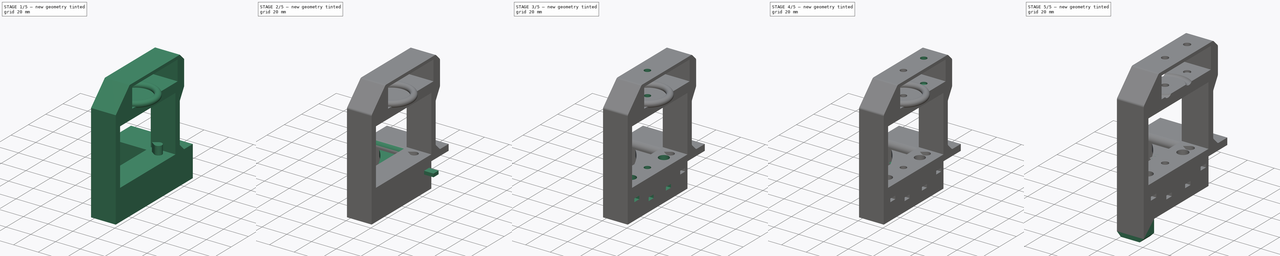
[diagram: build sequence overview — one tinted view per stage of 5, left to right]
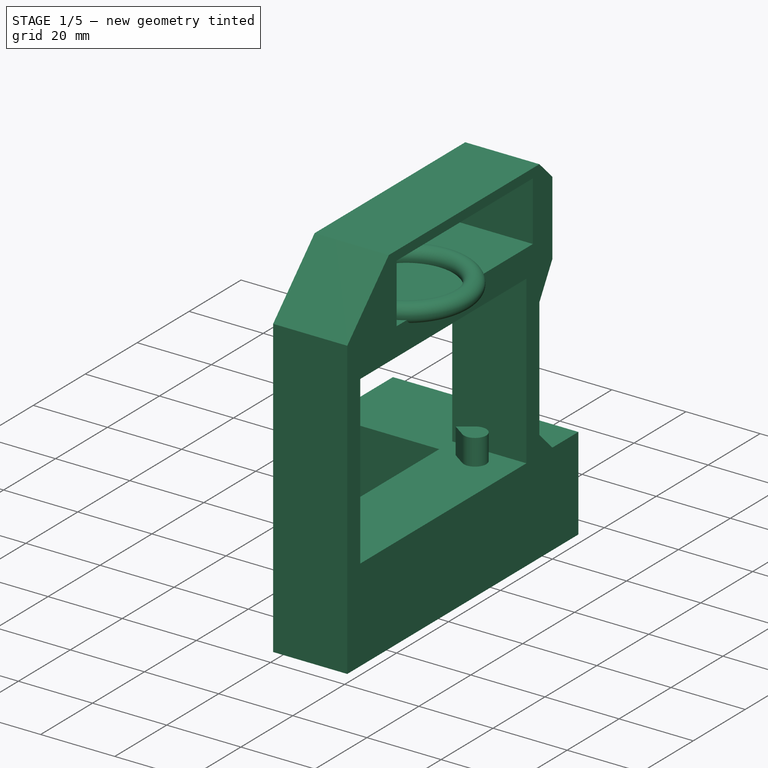
[diagram: stage 1 of 5 — iso view after this stage's code; geometry added in this stage tinted green]
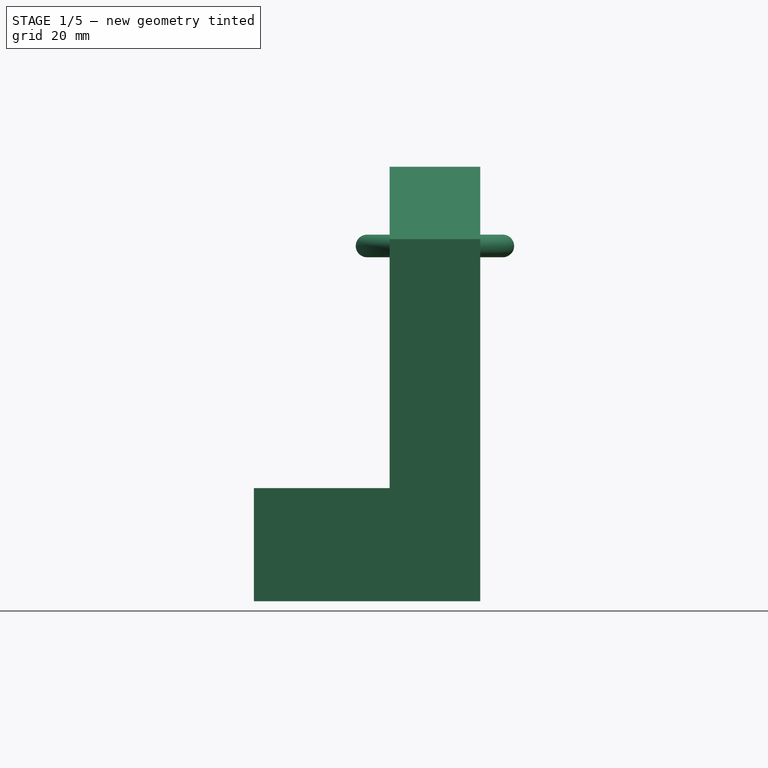
[diagram: stage 1 of 5 — front view after this stage's code; geometry added in this stage tinted green]
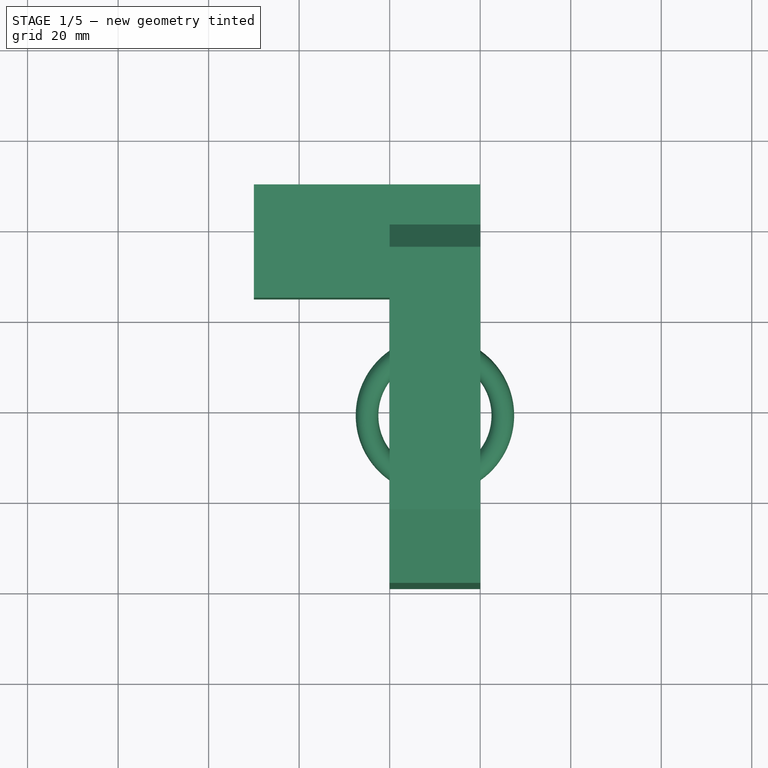
[diagram: stage 1 of 5 — top view after this stage's code; geometry added in this stage tinted green]
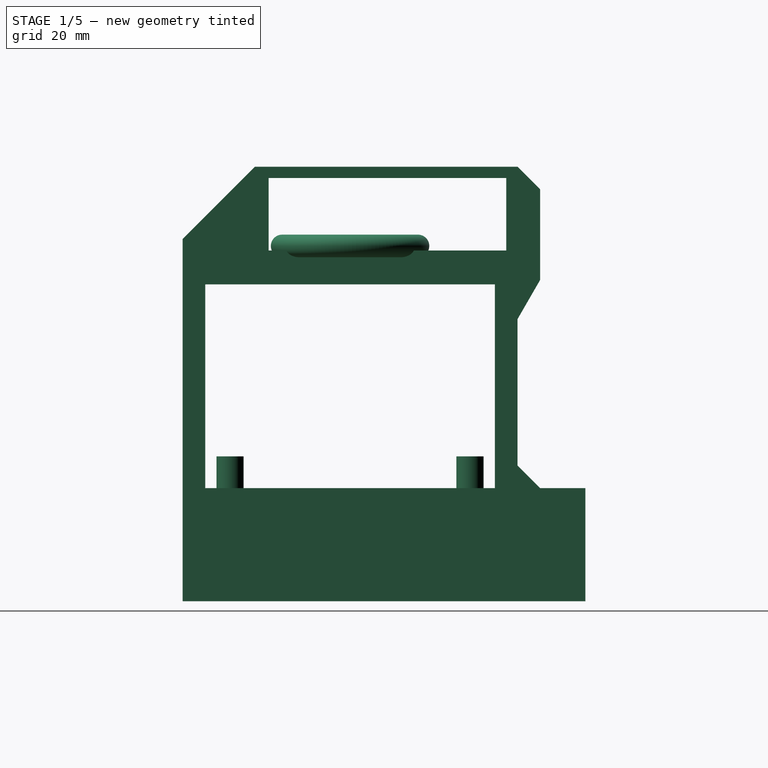
[diagram: stage 1 of 5 — right view after this stage's code; geometry added in this stage tinted green]
FCSTD DOCUMENT  (FreeCAD 0.16R6698 (Git))
Label: MainStructure
License: All rights reserved
LicenseURL: http://en.wikipedia.org/wiki/All_rights_reserved
objects: Part::FeaturePython×16, Sketcher::SketchObject×15, Part::Cut×13, PartDesign::Pad×8, Part::Feature×8, Part::Cylinder×3, Part::Chamfer×3, PartDesign::Pocket×3, Part::Extrusion×3, App::DocumentObjectGroup×3, Part::Fillet×2, Part::MultiCommon×2, Spreadsheet::Sheet×1, Part::MultiFuse×1, PartDesign::Draft×1, Part::Revolution×1
note: 90 computed .brp shape members not serialized (recipe doc carries the construction recipe); baked Part::Feature solids carry a one-line shape summary decoded from their .brp

FEATURE [Spreadsheet::Sheet] Spreadsheet  label="Parameters"
  cells = A1=Bolt Clearance (Radius); B1=0; A2=Smooth Rod Clearance (Radius); B2=0; A3=Bearing Clearance (Radius); B3=0; A4=Threaded Rod Clearance (Radius); B4=0; A5=GearsClearance; B5=0
FEATURE [Sketcher::SketchObject] Sketch  label="Base"
  Placement = pos=(0,0,0) rot=(0.57735,0.57735,0.57735;2.0944rad)
  sketch-geometry (6):
    g0: LineSegment StartX=0 StartY=86 StartZ=0 EndX=-79 EndY=86 EndZ=0
    g1: LineSegment StartX=-79 StartY=86 StartZ=0 EndX=-79 EndY=-10 EndZ=0
    g2: LineSegment StartX=-79 StartY=-10 StartZ=0 EndX=-5 EndY=-10 EndZ=0
    g3: LineSegment StartX=-5 StartY=-10 StartZ=0 EndX=-5 EndY=52.3397 EndZ=0
    g4: LineSegment StartX=0 StartY=86 StartZ=0 EndX=0 EndY=61 EndZ=0
    g5: LineSegment StartX=0 StartY=61 StartZ=0 EndX=-5 EndY=52.3397 EndZ=0
  constraints (18):
    c: Coincident(g0,g1)
    c: Coincident(g1,g2)
    c: Coincident(g2,g3)
    c: Horizontal(g0)
    c: Horizontal(g2)
    c: Vertical(g1)
    c: Vertical(g3)
    c: DistanceY(g0) = 86
    c: DistanceY(g1,g1) = 96
    c: Coincident(g4,g5)
    c: Coincident(g3,g5)
    c: Coincident(g4,g0)
    c: DistanceX(g2,g2) = 74
    c: Vertical(g4)
    c: DistanceX(g0) = -79
    c: PointOnObject(g0,g-2)
    c: DistanceY(g4,g4) = 25
    c: Angle(g5) = -2.0944
FEATURE [PartDesign::Pad] Pad  label="Base001"
  Length = 20
  Length2 = 100
  Placement = pos=(0,0,0) rot=(0.57735,0.57735,0.57735;2.0944rad)
  Reversed = true
  Sketch = -> Sketch
  Type = 0
FEATURE [Part::Chamfer] Chamfer  label="NiceChamfer"
  Base = -> Pad
  Edges = 2 edges: [Edge1 r=5,Edge2 r=16]
FEATURE [Sketcher::SketchObject] Sketch020  label="AxisCavity"
  Placement = pos=(0,0,0) rot=(0.57735,0.57735,0.57735;2.0944rad)
  Support = -> Chamfer [Face2]
  sketch-geometry (4):
    g0: LineSegment StartX=-10 StartY=60 StartZ=0 EndX=-74 EndY=60 EndZ=0
    g1: LineSegment StartX=-74 StartY=60 StartZ=0 EndX=-74 EndY=15 EndZ=0
    g2: LineSegment StartX=-74 StartY=15 StartZ=0 EndX=-10 EndY=15 EndZ=0
    g3: LineSegment StartX=-10 StartY=15 StartZ=0 EndX=-10 EndY=60 EndZ=0
  constraints (12):
    c: Coincident(g0,g1)
    c: Coincident(g1,g2)
    c: Coincident(g2,g3)
    c: Coincident(g3,g0)
    c: Horizontal(g0)
    c: Horizontal(g2)
    c: Vertical(g1)
    c: Vertical(g3)
    c: DistanceX(g0) = -10
    c: DistanceY(g0) = 60
    c: DistanceX(g0,g0) = 64
    c: DistanceY(g1,g1) = 45
FEATURE [PartDesign::Pocket] Pocket  label="AxisCavity001"
  Length = 5
  Sketch = -> Sketch020
  Type = 1
FEATURE [Sketcher::SketchObject] Sketch021  label="GearsCavity"
  Placement = pos=(0,0,0) rot=(0.57735,0.57735,0.57735;2.0944rad)
  Support = -> Pocket [Face2]
  expr: Constraints[9] = 16 + Parameters.B5
  sketch-geometry (4):
    g0: LineSegment StartX=-60 StartY=83.5 StartZ=0 EndX=-7.5 EndY=83.5 EndZ=0
    g1: LineSegment StartX=-7.5 StartY=83.5 StartZ=0 EndX=-7.5 EndY=67.5 EndZ=0
    g2: LineSegment StartX=-7.5 StartY=67.5 StartZ=0 EndX=-60 EndY=67.5 EndZ=0
    g3: LineSegment StartX=-60 StartY=67.5 StartZ=0 EndX=-60 EndY=83.5 EndZ=0
  constraints (12):
    c: Coincident(g0,g1)
    c: Coincident(g1,g2)
    c: Coincident(g2,g3)
    c: Coincident(g3,g0)
    c: Horizontal(g0)
    c: Horizontal(g2)
    c: Vertical(g1)
    c: Vertical(g3)
    c: DistanceX(g0) = -7.5
    c: DistanceY(g1,g1) = 16
    c: DistanceY(g0) = 83.5
    c: DistanceX(g0,g0) = 52.5
FEATURE [PartDesign::Pocket] Pocket001  label="GearsCavity001"
  Length = 5
  Sketch = -> Sketch021
  Type = 1
FEATURE [Sketcher::SketchObject] Sketch022  label="ProfileHolder"
  Placement = pos=(0,0,0) rot=(0.57735,0.57735,0.57735;2.0944rad)
  Support = -> Pocket001 [Face2]
  sketch-geometry (4):
    g0: LineSegment StartX=-15 StartY=15 StartZ=0 EndX=10 EndY=15 EndZ=0
    g1: LineSegment StartX=10 StartY=15 StartZ=0 EndX=10 EndY=-10 EndZ=0
    g2: LineSegment StartX=10 StartY=-10 StartZ=0 EndX=-15 EndY=-10 EndZ=0
    g3: LineSegment StartX=-15 StartY=-10 StartZ=0 EndX=-15 EndY=15 EndZ=0
  constraints (12):
    c: Coincident(g0,g1)
    c: Coincident(g2,g3)
    c: Coincident(g3,g0)
    c: Vertical(g3)
    c: Vertical(g1)
    c: Horizontal(g0)
    c: Horizontal(g2)
    c: DistanceY(g0) = 15
    c: DistanceX(g0) = -15
    c: Coincident(g1,g2)
    c: DistanceX(g2,g2) = 25
    c: Equal(g1,g2)
FEATURE [PartDesign::Pad] Pad019  label="ProfileHolder001"
  Length = 50
  Length2 = 100
  Reversed = true
  Sketch = -> Sketch022
  Type = 0
FEATURE [Part::Chamfer] Chamfer017  label="NiceChamfer001"
  Base = -> Pad019
  Edges = 1 edges r=5: [Edge37]
FEATURE [Sketcher::SketchObject] Sketch026  label="M3TearBoltHead"
  sketch-geometry (4):
    g0: ArcOfCircle CenterX=0 CenterY=0 CenterZ=0 NormalX=0 NormalY=0 NormalZ=1 Radius=3 StartAngle=2.53073 EndAngle=6.89405
    g1: LineSegment StartX=-2.45746 StartY=1.72072 StartZ=0 EndX=0 EndY=5.23034 EndZ=0
    g2: LineSegment StartX=0 StartY=5.23034 StartZ=0 EndX=2.45746 EndY=1.72072 EndZ=0
    g3: LineSegment [constr] StartX=0 StartY=5.23034 StartZ=0 EndX=0 EndY=0 EndZ=0
  constraints (11):
    c: Coincident(g0,g-1)
    c: Coincident(g1,g2)
    c: Coincident(g2,g0)
    c: Coincident(g1,g0)
    c: Tangent(g0,g1)
    c: Tangent(g2,g0)
    c: Coincident(g3,g1)
    c: Coincident(g3,g-1)
    c: Vertical(g3)
    c: Angle(g1,g2) = 1.22173
    c: Radius(g0) = 3
FEATURE [PartDesign::Pad] Pad020  label="M3TearBoltHead001"
  Length = 10
  Length2 = 100
  Reversed = true
  Sketch = -> Sketch026
  Type = 0
FEATURE [Sketcher::SketchObject] Sketch027  label="M3TearBoltThread"
  Support = -> Pad020 [Face4]
  expr: Constraints[10] = 1.5 + Parameters.B1
  sketch-geometry (4):
    g0: ArcOfCircle CenterX=0 CenterY=0 CenterZ=0 NormalX=0 NormalY=0 NormalZ=1 Radius=1.5 StartAngle=2.53074 EndAngle=6.89404
    g1: LineSegment StartX=-1.22874 StartY=0.860352 StartZ=0 EndX=0 EndY=2.61517 EndZ=0
    g2: LineSegment StartX=0 StartY=2.61517 StartZ=0 EndX=1.22874 EndY=0.860352 EndZ=0
    g3: LineSegment [constr] StartX=0 StartY=2.61517 StartZ=0 EndX=0 EndY=0 EndZ=0
  constraints (11):
    c: Coincident(g0,g-1)
    c: Coincident(g1,g2)
    c: Coincident(g2,g0)
    c: Coincident(g1,g0)
    c: Tangent(g0,g1)
    c: Tangent(g2,g0)
    c: Coincident(g3,g1)
    c: Coincident(g3,g-1)
    c: Vertical(g3)
    c: Angle(g1,g2) = 1.22173
    c: Radius(g0) = 1.5
FEATURE [PartDesign::Pad] Pad021  label="M3TearBolt"
  Length = 20
  Length2 = 100
  Sketch = -> Sketch027
  Type = 0
FEATURE [Part::FeaturePython] Clone088  label="Clone of M3TearBolt"  # Draft clone (typed FeaturePython)
  Objects = -> [Pad021]
  Placement = pos=(-10,-15.5,12) rot=(-0.707107,0.707107,0;3.14159rad)
  Scale = (1,1,1)
FEATURE [Part::FeaturePython] Array003  label="UpperBolts"  # Draft array (typed FeaturePython)
  Angle = 360
  ArrayType = 0
  Axis = (0,0,1)
  Base = -> Clone088
  Center = (0,0,0)
  Fuse = false
  IntervalAxis = (0,0,0)
  IntervalX = (1,0,0)
  IntervalY = (0,-53,0)
  IntervalZ = (0,0,0)
  NumberPolar = 1
  NumberX = 1
  NumberY = 2
  NumberZ = 1
FEATURE [Part::Feature] Clone096001  label="BigGear"
  Placement = pos=(-10,-42,68) rot=(0,0,1;0rad)
  shape: bbox 33.05 x 33.05 x 15.4 mm, 417 faces, 2 solids (baked)
FEATURE [Sketcher::SketchObject] Sketch031  label="AntiCollitionCut"
  Placement = pos=(0,0,0) rot=(0.57735,0.57735,0.57735;2.0944rad)
  sketch-geometry (1):
    g0: Circle CenterX=15 CenterY=68.5 CenterZ=0 NormalX=0 NormalY=0 NormalZ=1 Radius=2.5
  constraints (3):
    c: DistanceY(g0) = 68.5
    c: DistanceX(g0) = 15
    c: Radius(g0) = 2.5
FEATURE [Part::Revolution] Revolve  label="AntiCollitionCut001"
  Angle = 360
  Axis = (0,0,1)
  Base = (0,0,1)
  Placement = pos=(-10,-42,0) rot=(0,0,1;0rad)
  Solid = true
  Source = -> Sketch031
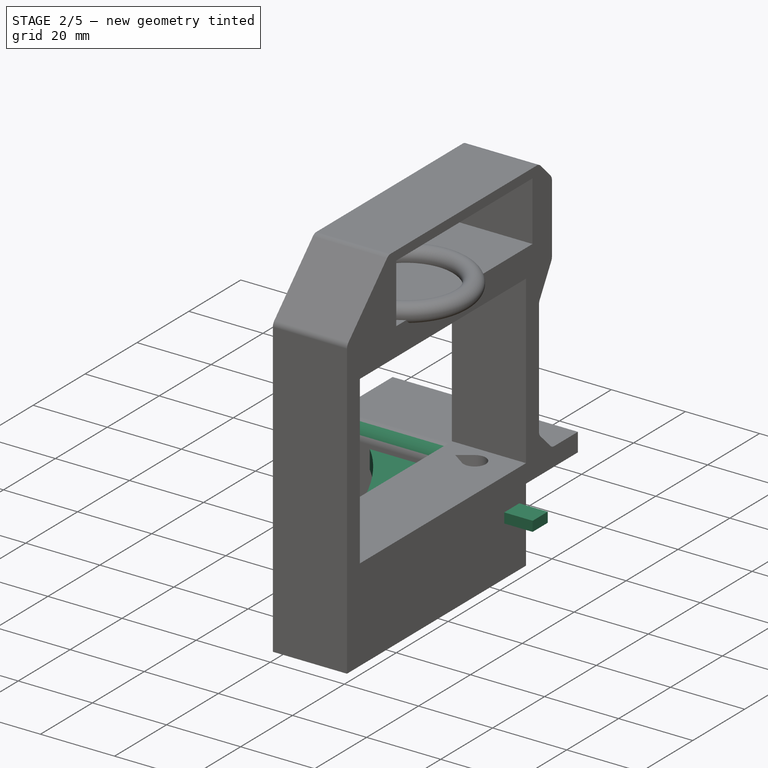
[diagram: stage 2 of 5 — iso view after this stage's code; geometry added in this stage tinted green]
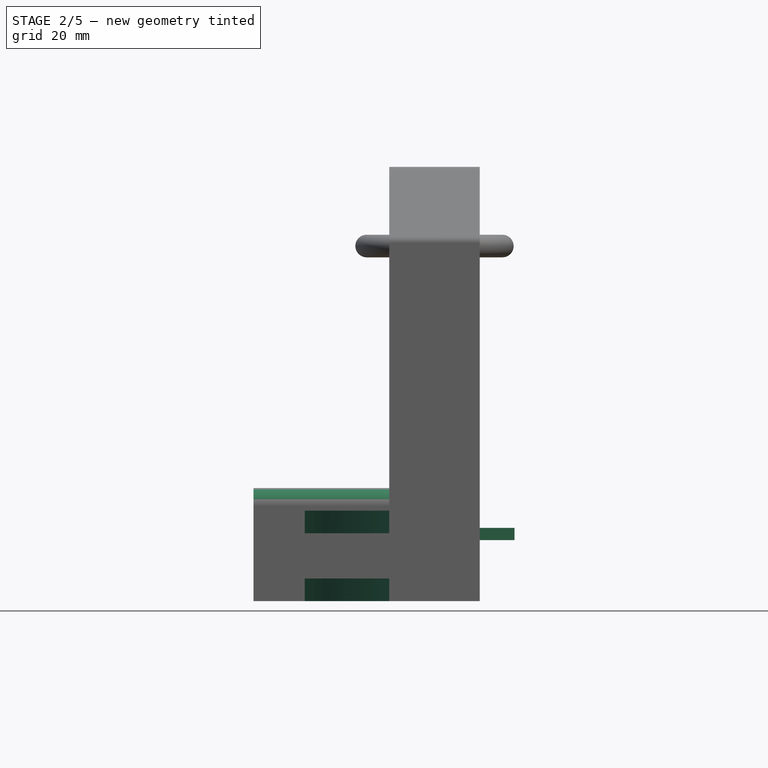
[diagram: stage 2 of 5 — front view after this stage's code; geometry added in this stage tinted green]
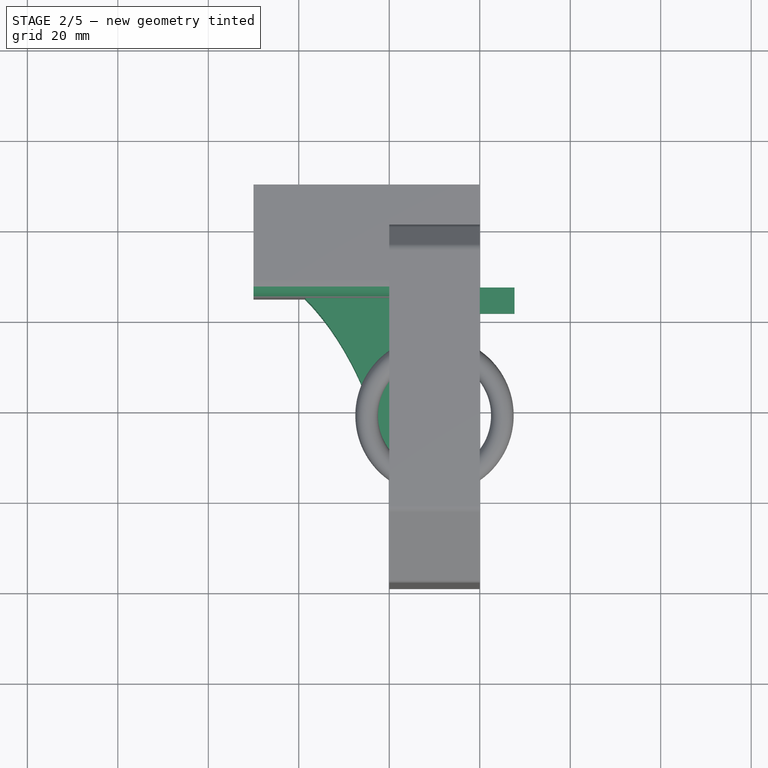
[diagram: stage 2 of 5 — top view after this stage's code; geometry added in this stage tinted green]
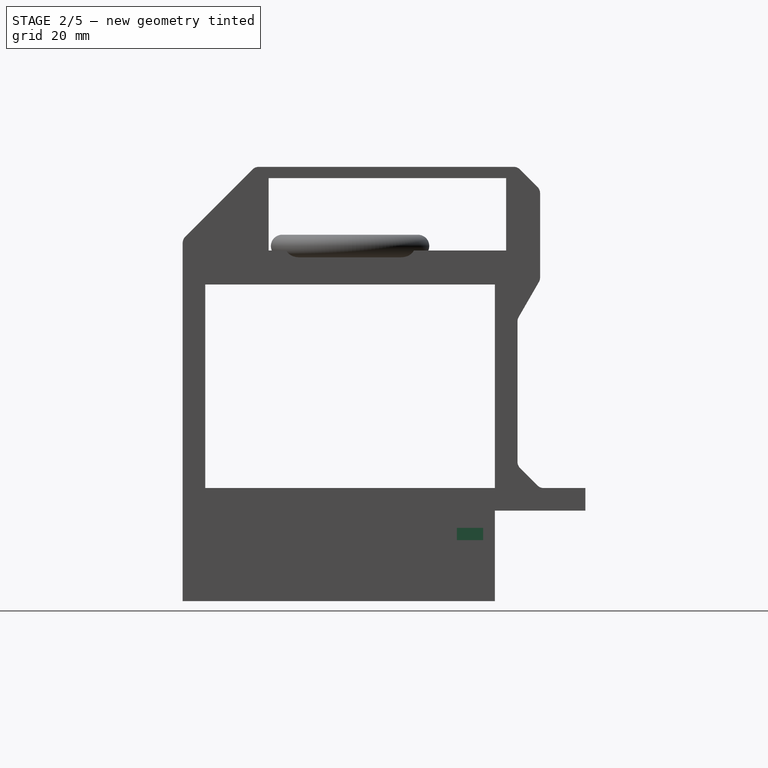
[diagram: stage 2 of 5 — right view after this stage's code; geometry added in this stage tinted green]
FEATURE [Sketcher::SketchObject] Sketch008  label="M3NutHousingSketch002"
  sketch-geometry (5):
    g0: LineSegment StartX=0 StartY=0 StartZ=0 EndX=1.67432 EndY=2.9 EndZ=0
    g1: LineSegment StartX=1.67432 StartY=2.9 StartZ=0 EndX=21.6743 EndY=2.9 EndZ=0
    g2: LineSegment StartX=21.6743 StartY=2.9 StartZ=0 EndX=21.6743 EndY=-2.9 EndZ=0
    g3: LineSegment StartX=21.6743 StartY=-2.9 StartZ=0 EndX=1.67432 EndY=-2.9 EndZ=0
    g4: LineSegment StartX=1.67432 StartY=-2.9 StartZ=0 EndX=0 EndY=0 EndZ=0
  constraints (14):
    c: Coincident(g-1,g0)
    c: Coincident(g0,g1)
    c: Horizontal(g1)
    c: Coincident(g1,g2)
    c: Vertical(g2)
    c: Coincident(g2,g3)
    c: Horizontal(g3)
    c: Coincident(g3,g4)
    c: Coincident(g4,g0)
    c: Equal(g3,g1)
    c: Equal(g4,g0)
    c: DistanceY(g2) = -5.8
    c: Angle(g-1,g0) = 1.0472
    c: DistanceX(g3) = -20
FEATURE [PartDesign::Pad] Pad007  label="M3NutHousingMaster"
  Length = 2.7
  Length2 = 100
  Sketch = -> Sketch008
  Type = 0
FEATURE [Sketcher::SketchObject] Sketch023  label="ProfileSlot"
  Placement = pos=(0,0,0) rot=(0.57735,0.57735,0.57735;2.0944rad)
  Support = -> Chamfer017 [Face20]
  sketch-geometry (4):
    g0: LineSegment StartX=10 StartY=10 StartZ=0 EndX=-10 EndY=10 EndZ=0
    g1: LineSegment StartX=-10 StartY=10 StartZ=0 EndX=-10 EndY=-15 EndZ=0
    g2: LineSegment StartX=-10 StartY=-15 StartZ=0 EndX=10 EndY=-15 EndZ=0
    g3: LineSegment StartX=10 StartY=-15 StartZ=0 EndX=10 EndY=10 EndZ=0
  constraints (12):
    c: Coincident(g0,g1)
    c: Coincident(g1,g2)
    c: Coincident(g2,g3)
    c: Coincident(g3,g0)
    c: Horizontal(g0)
    c: Horizontal(g2)
    c: Vertical(g1)
    c: Vertical(g3)
    c: Symmetric(g0,g0,g-2)
    c: DistanceY(g0) = 10
    c: DistanceY(g3,g3) = 25
    c: DistanceX(g0,g0) = 20
FEATURE [PartDesign::Pocket] Pocket002  label="ProfileSlot001"
  Length = 5
  Sketch = -> Sketch023
  Type = 1
FEATURE [Sketcher::SketchObject] Sketch024  label="Reinforcement"
  Placement = pos=(0,0,15) rot=(0,0,1;0rad)
  Support = -> Pocket002 [Face5]
  sketch-geometry (7):
    g0: LineSegment StartX=-42 StartY=-12 StartZ=0 EndX=-18 EndY=-12 EndZ=0
    g1: LineSegment StartX=-18 StartY=-12 StartZ=0 EndX=-18 EndY=-67 EndZ=0
    g2: ArcOfEllipse CenterX=-60.4237 CenterY=-77.7588 CenterZ=0 NormalX=0 NormalY=0 NormalZ=1 MajorRadius=72.8177 MinorRadius=42.8944 AngleXU=1.5708 StartAngle=4.86068 EndAngle=5.83923
    g3: LineSegment [constr] StartX=-60.4237 StartY=-4.94115 StartZ=0 EndX=-60.4237 EndY=-150.576 EndZ=0
    g4: LineSegment [constr] StartX=-103.318 StartY=-77.7588 StartZ=0 EndX=-17.5292 EndY=-77.7588 EndZ=0
    g5: GeomPoint [constr] X=-60.4237 Y=-18.916 Z=0
    g6: GeomPoint [constr] X=-60.4237 Y=-136.602 Z=0
  constraints (11):
    c: Coincident(g0,g1)
    c: Horizontal(g0)
    c: Vertical(g1)
    c: DistanceY(g0) = -12
    c: DistanceX(g0) = -18
    c: InternalAlignment(g3-g6 -> g2) x4
    c: Coincident(g2,g0)
    c: Coincident(g2,g1)
    c: Vertical(g3)
    c: DistanceX(g0,g0) = 24
    c: DistanceY(g1,g1) = 55
FEATURE [Part::Extrusion] Extrude
  Base = -> Sketch024
  Dir = (0,0,-5)
  Placement = pos=(0,0,-5) rot=(0,0,1;0rad)
  Solid = true
FEATURE [Part::FeaturePython] Array  label="Ribs"  # Draft array (typed FeaturePython)
  Angle = 360
  ArrayType = 0
  Axis = (0,0,1)
  Base = -> Extrude
  Center = (0,0,0)
  Fuse = false
  IntervalAxis = (0,0,0)
  IntervalX = (1,0,0)
  IntervalY = (0,1,0)
  IntervalZ = (0,0,-15)
  NumberPolar = 1
  NumberX = 1
  NumberY = 1
  NumberZ = 2
FEATURE [Part::Fillet] Fillet  label="NiceFillet"
  Base = -> Pocket002
  Edges = 9 edges: [Edge22 r=2,Edge23 r=2,Edge25 r=2,Edge26 r=2,Edge31 r=4,Edge36 r=2,Edge38 r=2,Edge42 r=2,Edge46 r=2]
FEATURE [Part::MultiFuse] Fusion  label="Ribs001"
  Shapes = -> [Array,Fillet]
FEATURE [Part::FeaturePython] Clone086  label="Clone of M3NutHousingMaster"  # Draft clone (typed FeaturePython)
  Objects = -> [Pad007]
  Placement = pos=(-14,-15.5,3.5) rot=(0,0,1;0rad)
  Scale = (1,1,1)
FEATURE [Part::FeaturePython] Clone089  label="Clone of M3TearBolt001"  # Draft clone (typed FeaturePython)
  Objects = -> [Pad021]
  Placement = pos=(-10.2,-32,-17) rot=(0,0,1;1.5708rad)
  Scale = (1,1,1)
FEATURE [Part::FeaturePython] Array004  label="LowerBolts"  # Draft array (typed FeaturePython)
  Angle = 360
  ArrayType = 0
  Axis = (0,0,1)
  Base = -> Clone089
  Center = (0,0,0)
  Fuse = false
  IntervalAxis = (0,0,0)
  IntervalX = (1,0,0)
  IntervalY = (0,-20,0)
  IntervalZ = (0,0,0)
  NumberPolar = 1
  NumberX = 1
  NumberY = 2
  NumberZ = 1
FEATURE [Part::Cut] Cut
  Base = -> Fusion
  Tool = -> Array003
FEATURE [Part::Cut] Cut001
  Base = -> Cut
  Tool = -> Array004
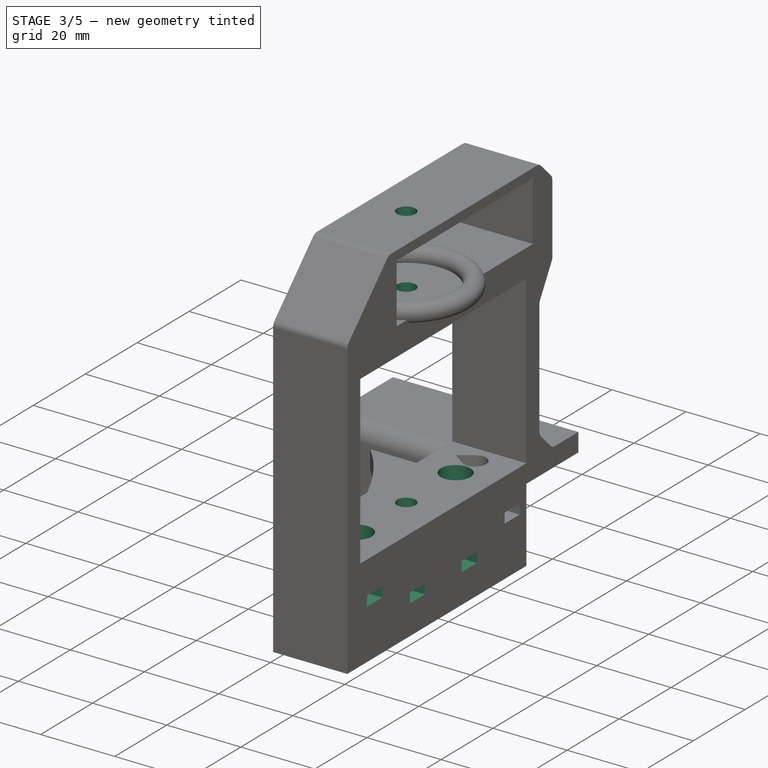
[diagram: stage 3 of 5 — iso view after this stage's code; geometry added in this stage tinted green]
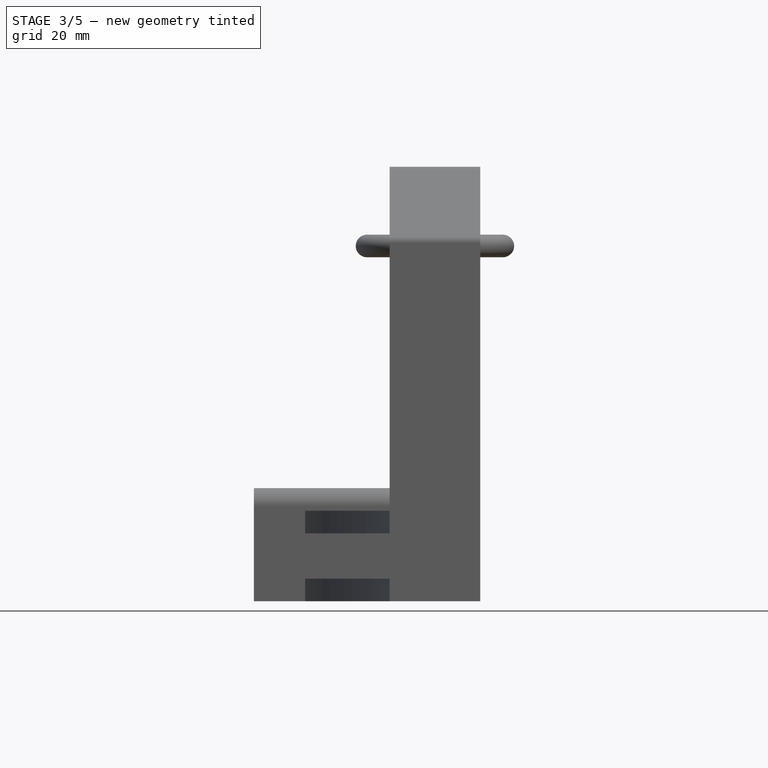
[diagram: stage 3 of 5 — front view after this stage's code; geometry added in this stage tinted green]
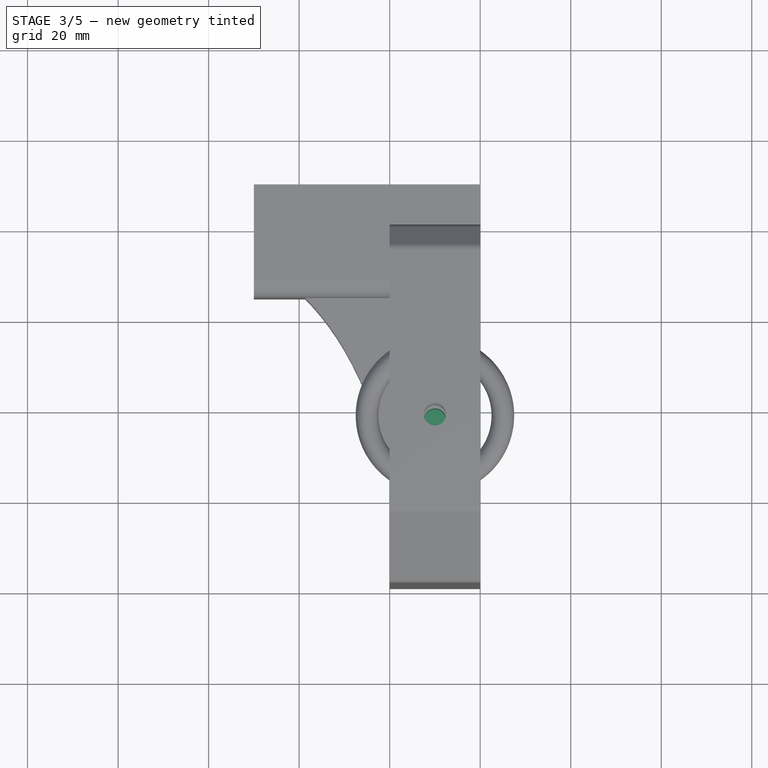
[diagram: stage 3 of 5 — top view after this stage's code; geometry added in this stage tinted green]
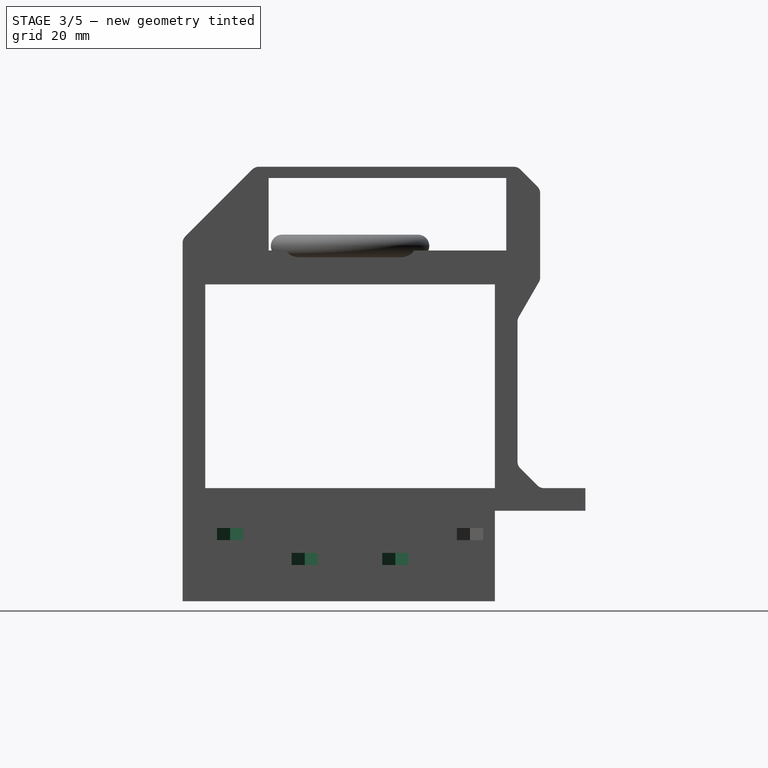
[diagram: stage 3 of 5 — right view after this stage's code; geometry added in this stage tinted green]
FEATURE [Part::Cylinder] Cylinder1006  label="8mmRodMaster"
  Angle = 360
  Height = 70
  Radius = 4
  expr: Radius = 4 + Parameters.B4
FEATURE [Part::Cylinder] Cylinder1014  label="5mmRodMaster"
  Angle = 360
  Height = 100
  Radius = 2.5
  expr: Radius = 2.5 + Parameters.B4
FEATURE [Part::FeaturePython] Array001  label="UpperNuts"  # Draft array (typed FeaturePython)
  Angle = 360
  ArrayType = 0
  Axis = (0,0,1)
  Base = -> Clone086
  Center = (0,0,0)
  Fuse = false
  IntervalAxis = (0,0,0)
  IntervalX = (1,0,0)
  IntervalY = (0,-53,0)
  IntervalZ = (0,0,0)
  NumberPolar = 1
  NumberX = 1
  NumberY = 2
  NumberZ = 1
FEATURE [Part::FeaturePython] Clone087  label="Clone of M3NutHousingMaster010"  # Draft clone (typed FeaturePython)
  Objects = -> [Pad007]
  Placement = pos=(-15,-32,-8) rot=(0,0,1;0rad)
  Scale = (1,1,1)
FEATURE [Part::FeaturePython] Array002  label="LowerNuts"  # Draft array (typed FeaturePython)
  Angle = 360
  ArrayType = 0
  Axis = (0,0,1)
  Base = -> Clone087
  Center = (0,0,0)
  Fuse = false
  IntervalAxis = (0,0,0)
  IntervalX = (1,0,0)
  IntervalY = (0,-20,0)
  IntervalZ = (0,0,0)
  NumberPolar = 1
  NumberX = 1
  NumberY = 2
  NumberZ = 1
  Placement = pos=(0,0,6) rot=(0,0,1;0rad)
FEATURE [Part::FeaturePython] Clone092  label="Clone of 8mmRodMaster"  # Draft clone (typed FeaturePython)
  Objects = -> [Cylinder1006]
  Placement = pos=(-10,-23,-5) rot=(0,0,1;0rad)
  Scale = (1,1,1)
FEATURE [Part::FeaturePython] Array005  label="SmRod"  # Draft array (typed FeaturePython)
  Angle = 360
  ArrayType = 0
  Axis = (0,0,1)
  Base = -> Clone092
  Center = (0,0,0)
  Fuse = false
  IntervalAxis = (0,0,0)
  IntervalX = (1,0,0)
  IntervalY = (0,-38,0)
  IntervalZ = (0,0,0)
  NumberPolar = 1
  NumberX = 1
  NumberY = 2
  NumberZ = 1
FEATURE [Part::FeaturePython] Clone094  label="Clone of 5mmRodMaster"  # Draft clone (typed FeaturePython)
  Objects = -> [Cylinder1014]
  Placement = pos=(-10,-42,3.5) rot=(0,0,1;0rad)
  Scale = (1,1,1)
FEATURE [Part::Cut] Cut002
  Base = -> Cut001
  Tool = -> Array001
FEATURE [Part::Cut] Cut003
  Base = -> Cut002
  Tool = -> Array002
FEATURE [Part::Cut] Cut004
  Base = -> Cut003
  Tool = -> Array005
FEATURE [Part::Cut] Cut005
  Base = -> Cut004
  Tool = -> Clone094
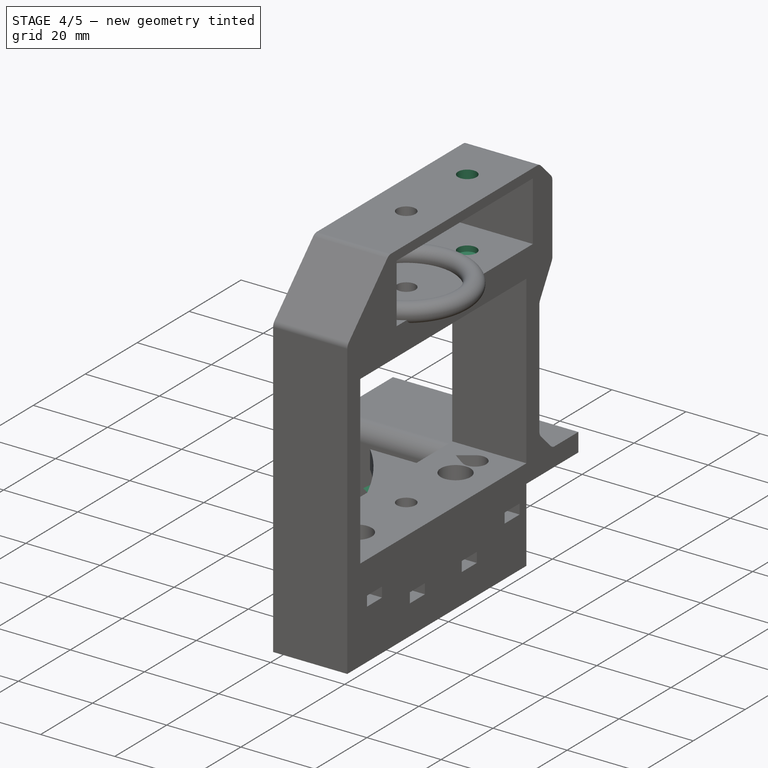
[diagram: stage 4 of 5 — iso view after this stage's code; geometry added in this stage tinted green]
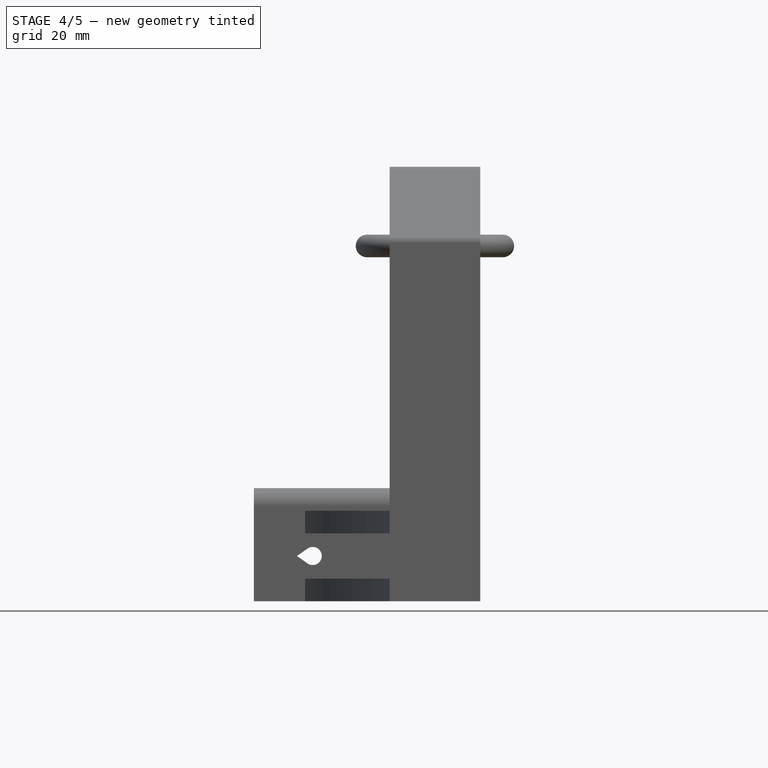
[diagram: stage 4 of 5 — front view after this stage's code; geometry added in this stage tinted green]
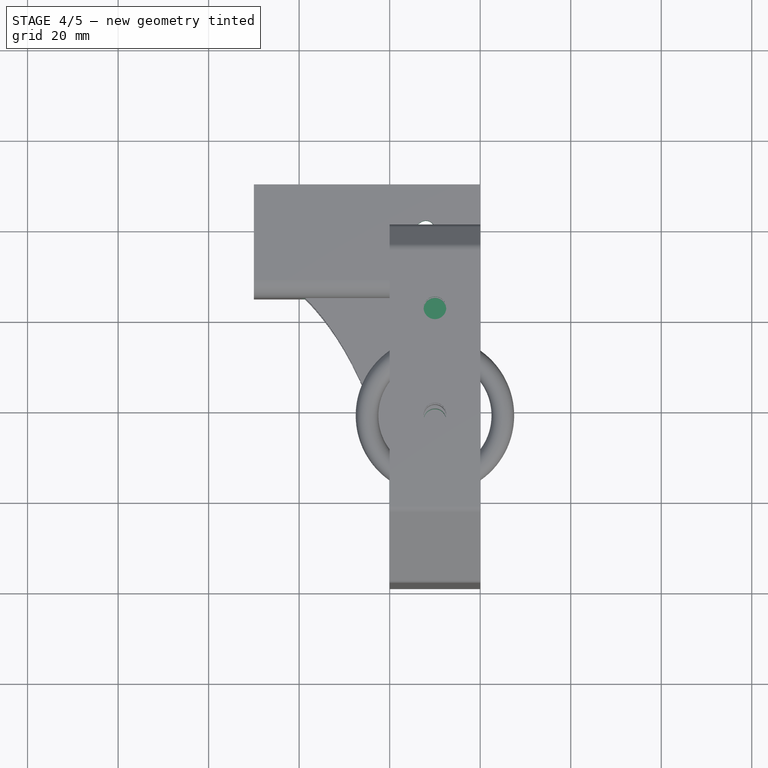
[diagram: stage 4 of 5 — top view after this stage's code; geometry added in this stage tinted green]
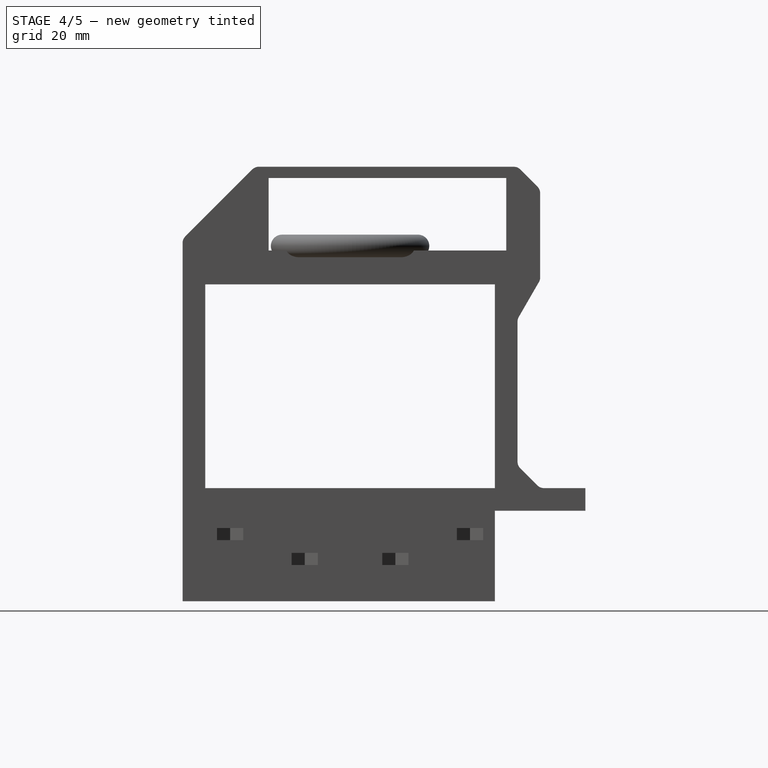
[diagram: stage 4 of 5 — right view after this stage's code; geometry added in this stage tinted green]
FEATURE [Part::Cylinder] Cylinder1003  label="Bearing625ZZMaster"
  Angle = 360
  Height = 5
  Radius = 8
  expr: Radius = 8 + Parameters.B3
FEATURE [Sketcher::SketchObject] Sketch028  label="M4TearBoltHead"
  sketch-geometry (4):
    g0: ArcOfCircle CenterX=0 CenterY=0 CenterZ=0 NormalX=0 NormalY=0 NormalZ=1 Radius=4 StartAngle=2.53072 EndAngle=6.89405
    g1: LineSegment StartX=-3.2766 StartY=2.29432 StartZ=0 EndX=0 EndY=6.97379 EndZ=0
    g2: LineSegment StartX=0 StartY=6.97379 StartZ=0 EndX=3.2766 EndY=2.29432 EndZ=0
    g3: LineSegment [constr] StartX=0 StartY=6.97379 StartZ=0 EndX=0 EndY=0 EndZ=0
  constraints (11):
    c: Coincident(g0,g-1)
    c: Coincident(g1,g2)
    c: Coincident(g2,g0)
    c: Coincident(g1,g0)
    c: Tangent(g0,g1)
    c: Tangent(g2,g0)
    c: Coincident(g3,g1)
    c: Coincident(g3,g-1)
    c: Vertical(g3)
    c: Angle(g1,g2) = 1.22173
    c: Radius(g0) = 4
FEATURE [PartDesign::Pad] Pad022  label="M4TearBoltHead001"
  Length = 10
  Length2 = 100
  Reversed = true
  Sketch = -> Sketch028
  Type = 0
FEATURE [Sketcher::SketchObject] Sketch029  label="M4TearBoltThread"
  Support = -> Pad022 [Face4]
  expr: Constraints[10] = 2 + Parameters.B1
  sketch-geometry (4):
    g0: ArcOfCircle CenterX=0 CenterY=0 CenterZ=0 NormalX=0 NormalY=0 NormalZ=1 Radius=2 StartAngle=2.53074 EndAngle=6.89404
    g1: LineSegment StartX=-1.63831 StartY=1.14714 StartZ=0 EndX=0 EndY=3.48689 EndZ=0
    g2: LineSegment StartX=0 StartY=3.48689 StartZ=0 EndX=1.63831 EndY=1.14714 EndZ=0
    g3: LineSegment [constr] StartX=0 StartY=3.48689 StartZ=0 EndX=0 EndY=0 EndZ=0
  constraints (11):
    c: Coincident(g0,g-1)
    c: Coincident(g1,g2)
    c: Coincident(g2,g0)
    c: Coincident(g1,g0)
    c: Tangent(g0,g1)
    c: Tangent(g2,g0)
    c: Coincident(g3,g1)
    c: Coincident(g3,g-1)
    c: Vertical(g3)
    c: Angle(g1,g2) = 1.22173
    c: Radius(g0) = 2
FEATURE [PartDesign::Pad] Pad023  label="M4TearBolt"
  Length = 20
  Length2 = 100
  Sketch = -> Sketch029
  Type = 0
FEATURE [App::DocumentObjectGroup] Group  label="Bolt_src"
  Group = -> [Cylinder1003,Cylinder1006,Cylinder1014,Pad007,Pad020,Pad021,Pad022,Pad023]
FEATURE [Part::FeaturePython] Clone090  label="Clone of M4TearBolt"  # Draft clone (typed FeaturePython)
  Objects = -> [Pad023]
  Placement = pos=(-12,0,15) rot=(-0.707107,0.707107,0;3.14159rad)
  Scale = (1,1,1)
FEATURE [Part::FeaturePython] Clone091  label="Clone of M4TearBolt001"  # Draft clone (typed FeaturePython)
  Objects = -> [Pad023]
  Placement = pos=(-37,-15,0) rot=(-0.57735,0.57735,0.57735;2.0944rad)
  Scale = (1,1,1)
FEATURE [Part::FeaturePython] Clone093  label="Clone of Bearing625ZZMaster"  # Draft clone (typed FeaturePython)
  Objects = -> [Cylinder1003]
  Placement = pos=(-10,-42,5) rot=(0,0,1;0rad)
  Scale = (1,1,1)
FEATURE [Part::FeaturePython] Clone095  label="Clone of 5mmRodMaster001"  # Draft clone (typed FeaturePython)
  Objects = -> [Cylinder1014]
  Placement = pos=(-10,-18.5,66) rot=(0,0,1;0rad)
  Scale = (1,1,1)
FEATURE [Part::Cut] Cut006
  Base = -> Cut005
  Tool = -> Clone095
FEATURE [Part::Cut] Cut007
  Base = -> Cut006
  Tool = -> Clone093
FEATURE [Part::Cut] Cut008
  Base = -> Cut007
  Tool = -> Clone090
FEATURE [Part::Cut] Cut009  label="ComponentsCut"
  Base = -> Cut008
  Tool = -> Clone091
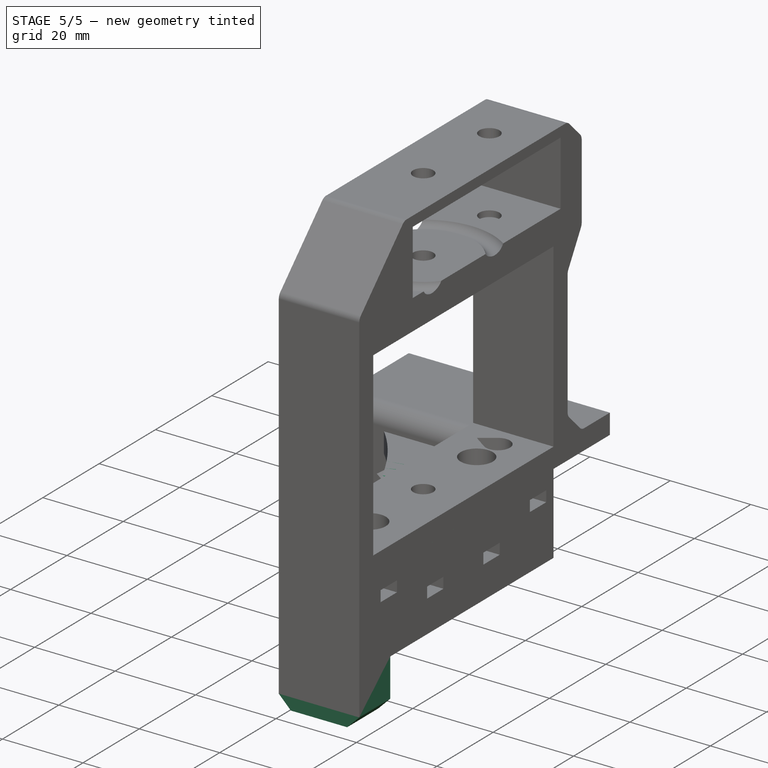
[diagram: stage 5 of 5 — iso view after this stage's code; geometry added in this stage tinted green]
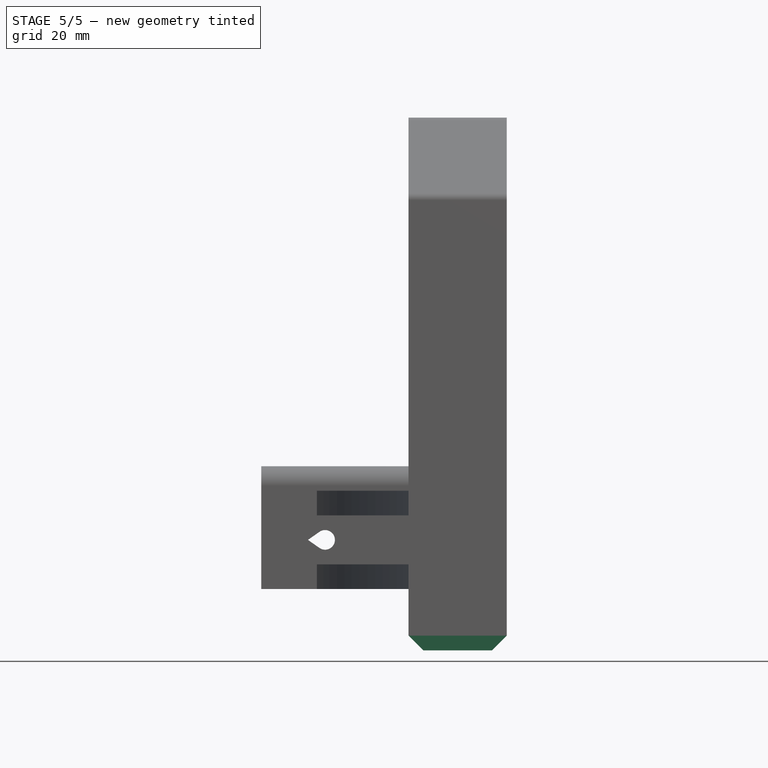
[diagram: stage 5 of 5 — front view after this stage's code; geometry added in this stage tinted green]
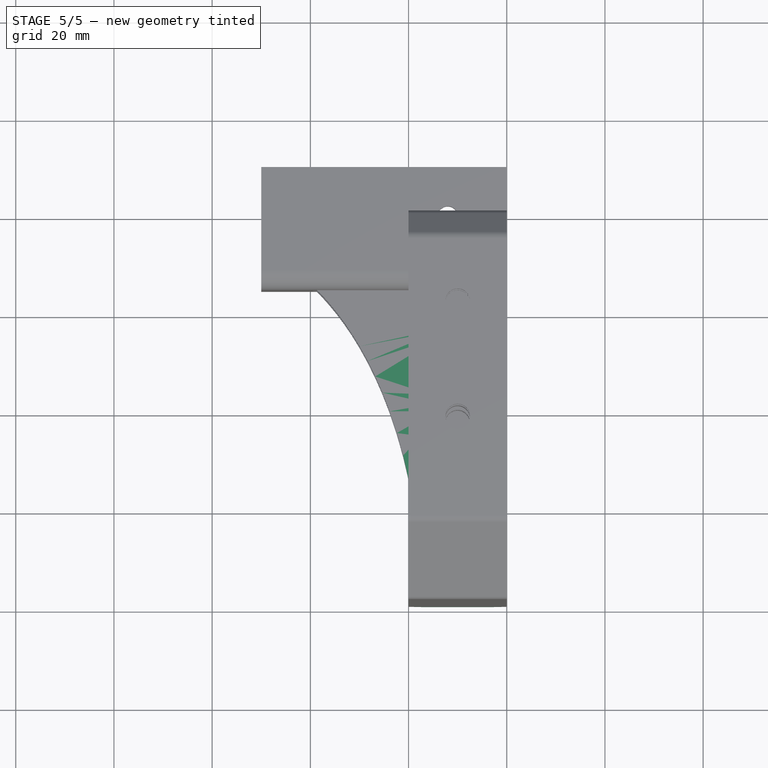
[diagram: stage 5 of 5 — top view after this stage's code; geometry added in this stage tinted green]
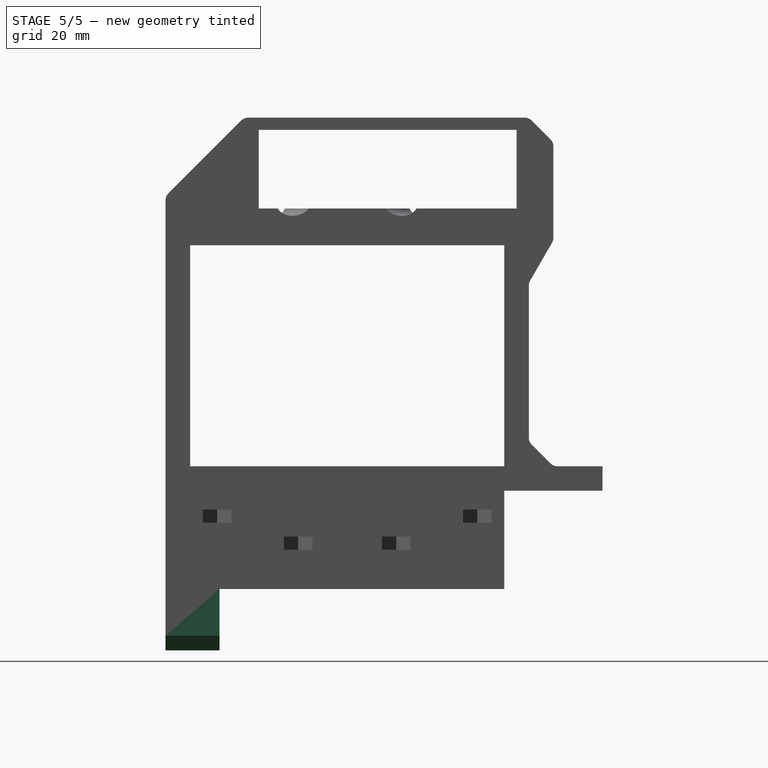
[diagram: stage 5 of 5 — right view after this stage's code; geometry added in this stage tinted green]
FEATURE [Sketcher::SketchObject] Sketch025  label="UpperLidCut001"
  Placement = pos=(0,0,15) rot=(0,0,1;0rad)
  Support = -> Fusion [Face8]
  sketch-geometry (5):
    g0: LineSegment StartX=0 StartY=-12 StartZ=0 EndX=-20 EndY=-12 EndZ=0
    g1: LineSegment StartX=-20 StartY=-12 StartZ=0 EndX=-20 EndY=-72 EndZ=0
    g2: LineSegment StartX=-20 StartY=-72 StartZ=0 EndX=0 EndY=-72 EndZ=0
    g3: LineSegment StartX=0 StartY=-72 StartZ=0 EndX=0 EndY=-12 EndZ=0
    g4: GeomPoint [constr] X=-10 Y=-42 Z=0
  constraints (13):
    c: Coincident(g0,g1)
    c: Coincident(g1,g2)
    c: Coincident(g2,g3)
    c: Coincident(g3,g0)
    c: Horizontal(g0)
    c: Horizontal(g2)
    c: Vertical(g1)
    c: Vertical(g3)
    c: PointOnObject(g0,g-2)
    c: DistanceY(g3,g3) = 60
    c: DistanceX(g0,g0) = 20
    c: Symmetric(g1,g0,g4)
    c: DistanceY(g4) = -42
FEATURE [Part::Extrusion] Extrude001  label="UpperLidCut002"
  Base = -> Sketch025
  Dir = (0,0,-5)
  Solid = true
FEATURE [Sketcher::SketchObject] Sketch030  label="LowerLidCut"
  Placement = pos=(0,0,-10) rot=(1,0,0;3.14159rad)
  Support = -> Fusion [Face38]
  sketch-geometry (5):
    g0: LineSegment StartX=-16 StartY=66 StartZ=0 EndX=-4 EndY=66 EndZ=0
    g1: LineSegment StartX=-4 StartY=66 StartZ=0 EndX=-4 EndY=18 EndZ=0
    g2: LineSegment StartX=-4 StartY=18 StartZ=0 EndX=-16 EndY=18 EndZ=0
    g3: LineSegment StartX=-16 StartY=18 StartZ=0 EndX=-16 EndY=66 EndZ=0
    g4: GeomPoint [constr] X=-10 Y=42 Z=0
  constraints (13):
    c: Coincident(g0,g1)
    c: Coincident(g1,g2)
    c: Coincident(g2,g3)
    c: Coincident(g3,g0)
    c: Horizontal(g0)
    c: Horizontal(g2)
    c: Vertical(g1)
    c: Vertical(g3)
    c: Symmetric(g0,g1,g4)
    c: DistanceX(g4) = -10
    c: DistanceY(g4) = 42
    c: DistanceX(g2,g2) = 12
    c: DistanceY(g1,g1) = 48
FEATURE [Part::Extrusion] Extrude002  label="LowerLidCut001"
  Base = -> Sketch030
  Dir = (0,0,5)
  Solid = true
FEATURE [PartDesign::Draft] Draft
  Angle = 30
  Base = -> Extrude002 [Face4]
  NeutralPlane = -> Extrude002 [Face6]
  Reversed = true
FEATURE [Part::Cut] Cut010  label="UpperLidCut"
  Base = -> Cut009
  Tool = -> Extrude001
FEATURE [Part::MultiCommon] Common  label="UpperLidCommon"
  Shapes = -> [Extrude001,Cut009]
FEATURE [Part::MultiCommon] Common002002  label="LowerLidCommon"
  Shapes = -> [Cut010,Draft]
FEATURE [Part::Cut] Cut011  label="LowerLidCut002"
  Base = -> Cut010
  Tool = -> Draft
FEATURE [Part::Cut] Cut011002  label="AntiCollitionCut002"
  Base = -> Cut011
  Tool = -> Revolve
FEATURE [Part::Fillet] Fillet001  label="NiceFillet002"
  Base = -> Cut011002
  Edges = 6 edges: [Edge172 r=2,Edge173 r=2,Edge176 r=2,Edge177 r=2,Edge178 r=2,Edge180 r=1]
FEATURE [Part::Feature] Part__Feature  label="Clone_of_SmallGear"
  Placement = pos=(-10,-18.5,68) rot=(0,0,1;0rad)
  shape: bbox 18.07 x 18.16 x 4.704 mm, 103 faces (baked)
FEATURE [Part::Feature] Part__Feature001  label="Clone_of_SmallGear001"
  Placement = pos=(-10,-18.5,68) rot=(0,0,1;0rad)
  shape: bbox 19 x 19 x 10.7 mm, 113 faces (baked)
FEATURE [Part::Feature] Common002002002  label="UpperLid"
  shape: bbox 20 x 60 x 5 mm, 23 faces (baked)
FEATURE [Part::Feature] Fillet002  label="T slot extrusion 20x20x200.001"
  Placement = pos=(-156,-10,-10) rot=(0,-1,0;1.5708rad)
  shape: bbox 200 x 20 x 20 mm, 51 faces (baked)
FEATURE [Part::Feature] FrontCorner_01001  label="FrontCorner001"
  Placement = pos=(-56,60,-10) rot=(0,0,1;0rad)
  shape: bbox 56.85 x 72.6 x 51.82 mm, 176 faces (baked)
FEATURE [App::DocumentObjectGroup] Group001  label="Reference"
  Group = -> [Clone096001,Part__Feature,Part__Feature001,Fillet002,FrontCorner_01001]
FEATURE [Sketcher::SketchObject] Sketch032  label="Foot"
  Placement = pos=(0,0,0) rot=(0.57735,0.57735,0.57735;2.0944rad)
  Support = -> Cut011002 [Face4]
  sketch-geometry (4):
    g0: LineSegment StartX=-79 StartY=-6.14001 StartZ=0 EndX=-68 EndY=-6.14001 EndZ=0
    g1: LineSegment StartX=-68 StartY=-6.14001 StartZ=0 EndX=-68 EndY=-22.5 EndZ=0
    g2: LineSegment StartX=-68 StartY=-22.5 StartZ=0 EndX=-79 EndY=-22.5 EndZ=0
    g3: LineSegment StartX=-79 StartY=-22.5 StartZ=0 EndX=-79 EndY=-6.14001 EndZ=0
  constraints (11):
    c: Coincident(g0,g1)
    c: Coincident(g1,g2)
    c: Coincident(g2,g3)
    c: Coincident(g3,g0)
    c: Horizontal(g0)
    c: Horizontal(g2)
    c: Vertical(g1)
    c: Vertical(g3)
    c: DistanceX(g0) = -79
    c: DistanceY(g1) = -22.5
    c: DistanceX(g0,g0) = 11
FEATURE [PartDesign::Pad] Pad024  label="Foot001"
  Length = 20
  Length2 = 100
  Reversed = true
  Sketch = -> Sketch032
  Type = 0
  UpToFace = -> Cut011002 [Face2]
FEATURE [Part::Chamfer] Chamfer018  label="NiceChamfer002"
  Base = -> Pad024
  Edges = 2 edges r=3: [Edge105,Edge106]
FEATURE [App::DocumentObjectGroup] Group002  label="src"
  Group = -> [Chamfer,Pocket,Chamfer017,Pocket001,Common,Common002002,Extrude002,Sketch031,Cut011002,Fillet001,Pad024,Chamfer018]
FEATURE [Part::Feature] Common002002003  label="LowerLid"
  shape: bbox 14.89 x 48 x 5 mm, 12 faces (baked)
FEATURE [Part::Feature] Chamfer018002  label="MainStructure"
  shape: bbox 54.9 x 89 x 108.5 mm, 136 faces (baked)
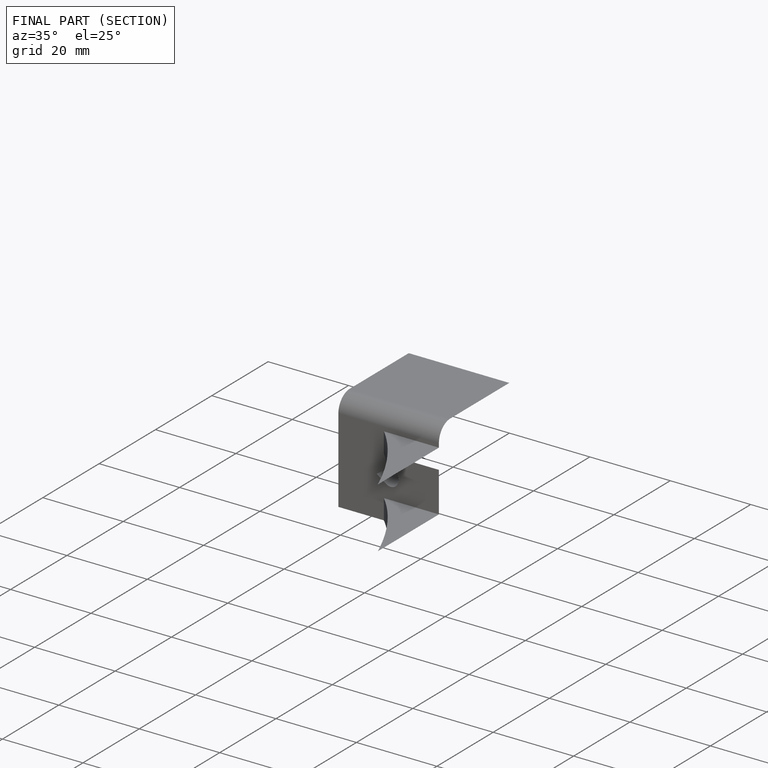
[diagram: finished part — half-section view (interior)]
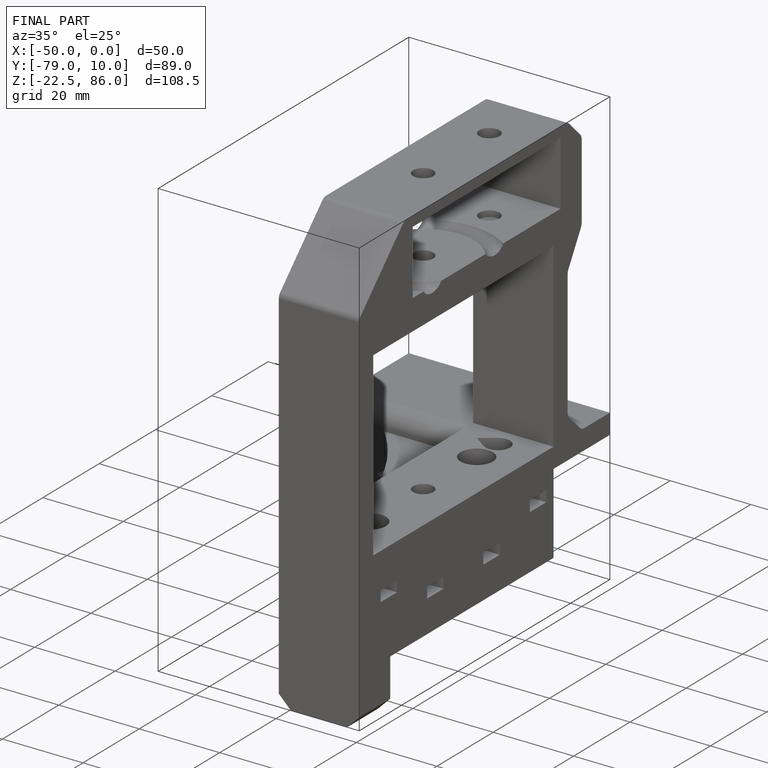
[diagram: finished part — iso view with bounding-box wireframe]
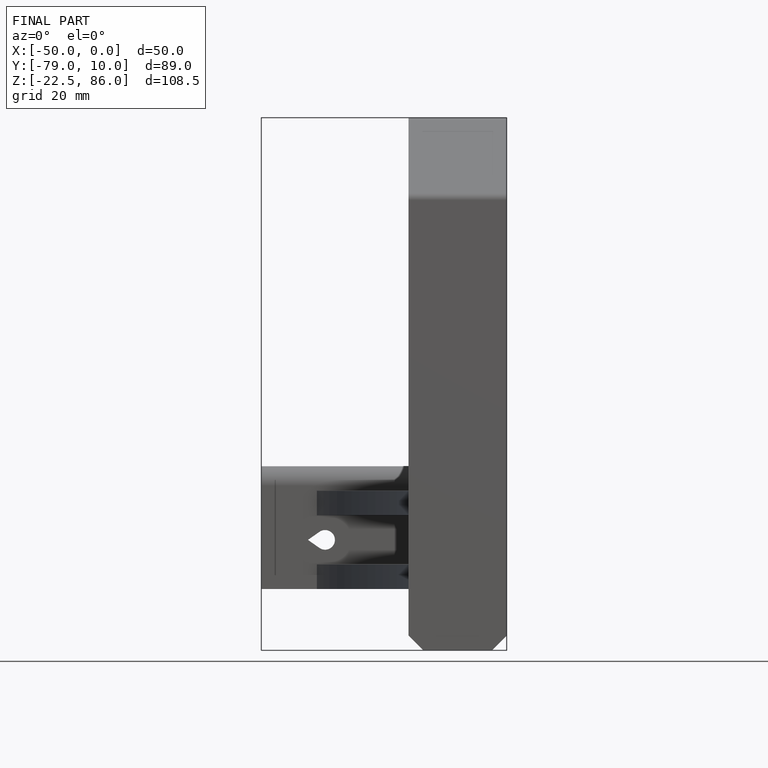
[diagram: finished part — front view with bounding-box wireframe]
